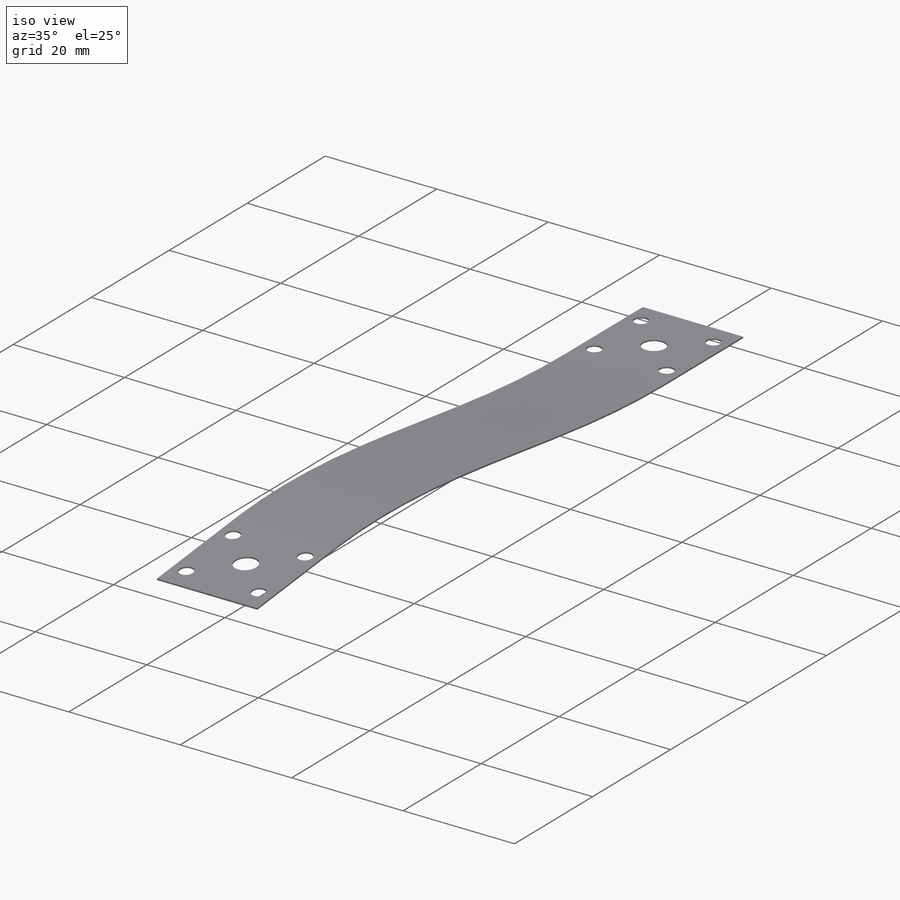
[diagram: iso view]
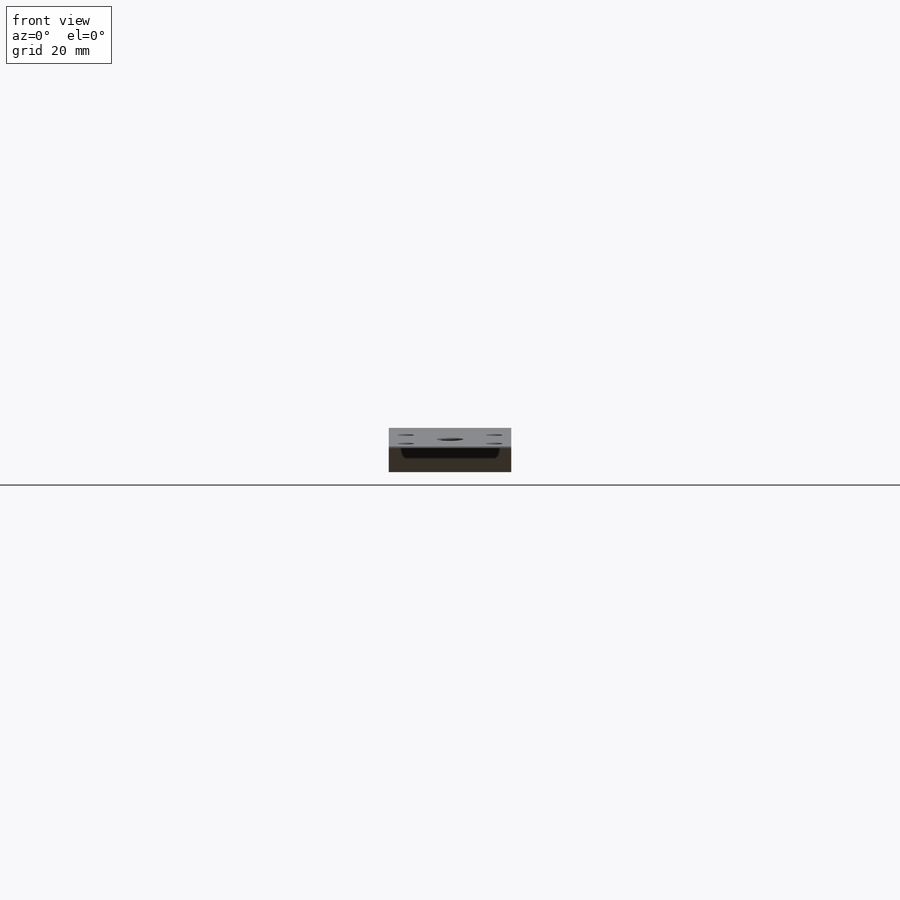
[diagram: front view]
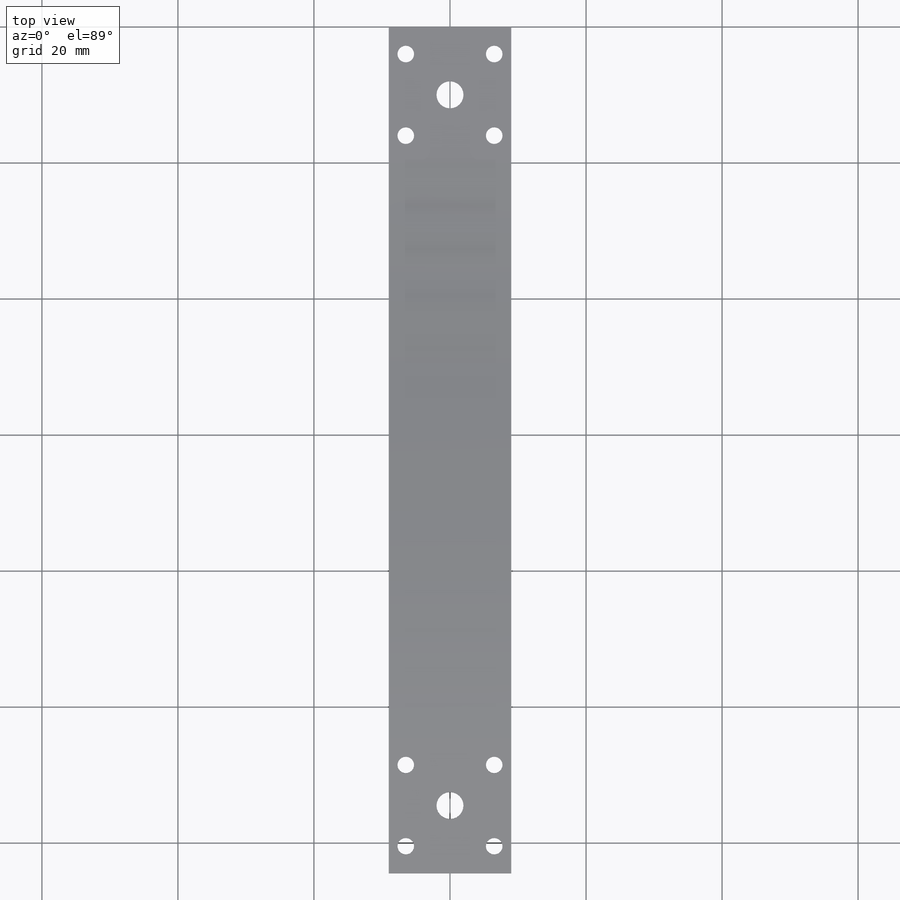
[diagram: top view]
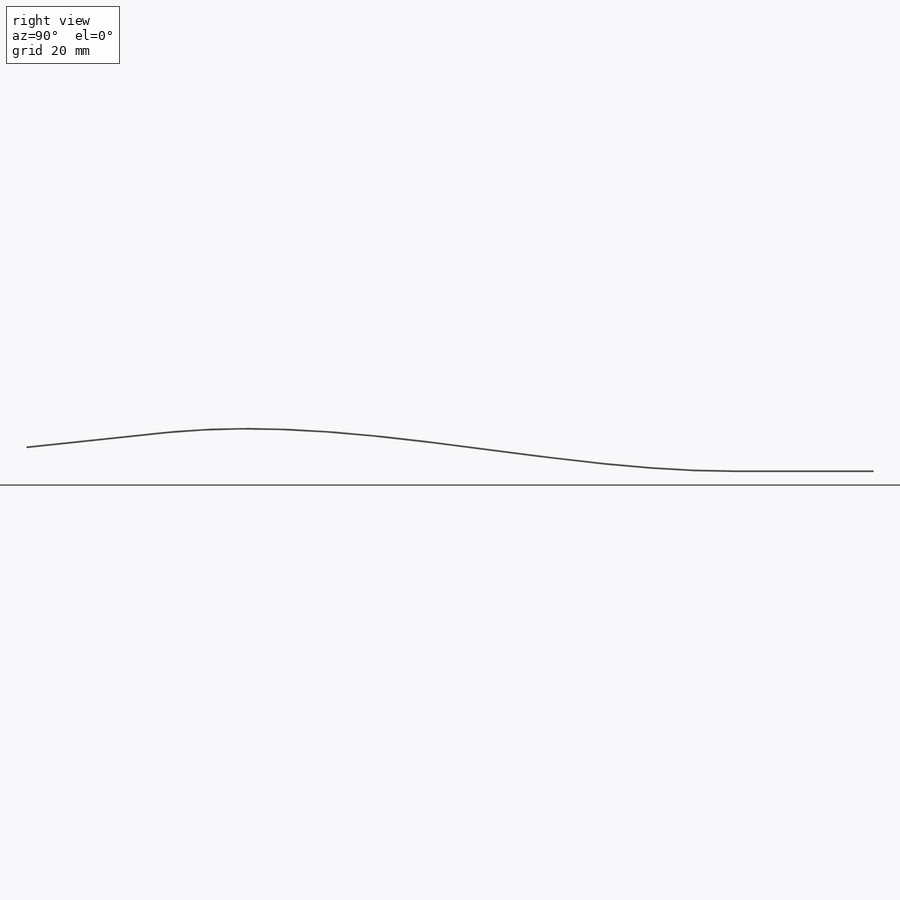
[diagram: right view]
SOLIDWORKS PART (.sldprt)
format: sldprt  version: not decoded by parser v0  size: 291,840 bytes
history: native  units: mm
features: sketch x9, hole x4, material x1 (+11 scaffold rows collapsed)
feature tree (25):
  scaffold x11  (default folders/planes/origin — collapsed)
  material  "Material <not specified>"
  sketch  "Sketch1"  dims[c1.D1=20.0mm c2.D1=18.0mm c2.D5=0.254mm c2.D6=1.0mm c2.D7=5.0mm]
  hole  "#2 Clearance Hole1"  Diameter=2.4384mm Depth=135.89mm
  sketch  "Sketch3"  dims[D1=12.0mm D2=6.5mm]
  sketch  "Sketch2"  dims[hole-wizard template sketch: 47 standard entries collapsed; hole parameters kept: c15.Hole Depth=135.89mm c15.D3=~14.816244mm c15.Drill Angle=118.0deg]
  hole  "#2 Clearance Hole2"  Diameter=2.4384mm Depth=135.89mm
  sketch  "Sketch5"  dims[D1=12.0mm D2=6.5mm]
  sketch  "Sketch4"  dims[hole-wizard template sketch: 47 standard entries collapsed; hole parameters kept: c15.Hole Depth=135.89mm c15.D3=~14.816244mm c15.Drill Angle=118.0deg]
  hole  "5/32 (0.15625) Diameter Hole1"  Diameter=3.96875mm Depth=7.8mm
  sketch  "Sketch7"
  sketch  "Sketch6"  dims[hole-wizard template sketch: 47 standard entries collapsed; hole parameters kept: c15.Hole Depth=7.8mm c15.D3=~14.816244mm c15.Drill Angle=118.0deg]
  hole  "5/32 (0.15625) Diameter Hole2"  Diameter=3.96875mm Depth=7.8mm
  sketch  "Sketch9"
  sketch  "Sketch8"  dims[hole-wizard template sketch: 47 standard entries collapsed; hole parameters kept: c15.Hole Depth=7.8mm c15.D3=~14.816244mm c15.Drill Angle=118.0deg]
decode coverage: 11 of 13 modeling features carry decoded parameters
note: ~ marks probable driven/reference dimensions
summary: Diameter pulled from absorbed wizard sketch
note: suppression state not decoded; provenance and decode notes live in map.json
